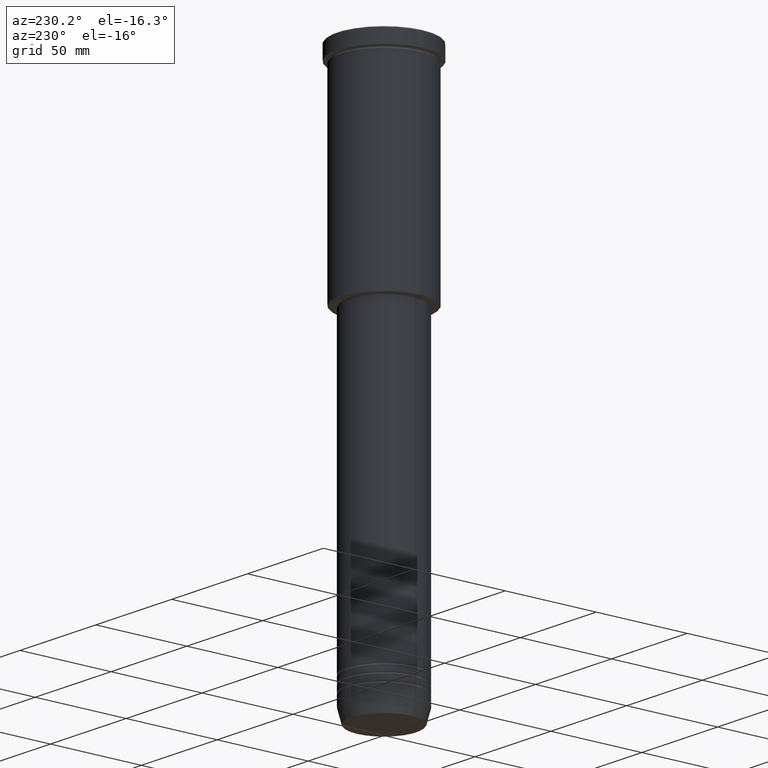
[diagram: clean part render]
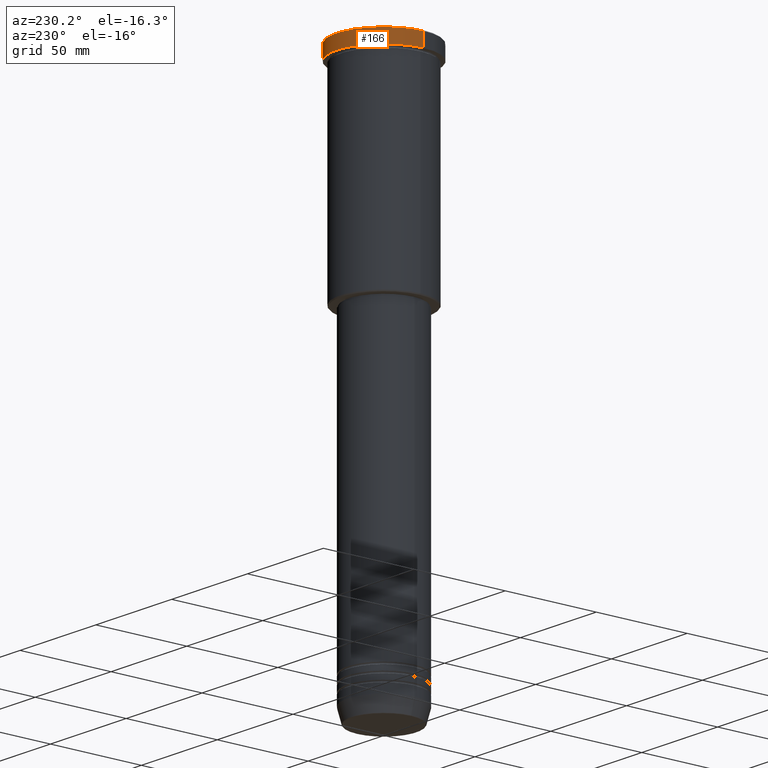
[diagram: same view with one face highlighted and labeled with its STEP entity id]
A machine part, auxiliary view. The second image highlights one B-rep face of the part: STEP entity #166.
In plain terms, the highlighted cylindrical surface (partial cylindrical patch) has radius 26 mm, axis along (-0, -0, 1).
Its self-contained STEP definition (entity closure, byte-faithful):
#4 = CARTESIAN_POINT ( 'NONE',  ( 0.000000000000000000, 0.000000000000000000, 0.000000000000000000 ) ) ;
#6 = VERTEX_POINT ( 'NONE', #905 ) ;
#83 = ORIENTED_EDGE ( 'NONE', *, *, #755, .T. ) ;
#124 = AXIS2_PLACEMENT_3D ( 'NONE', #946, #316, #211 ) ;
#166 = ADVANCED_FACE ( 'NONE', ( #459 ), #467, .T. ) ;
#192 = DIRECTION ( 'NONE',  ( -0.000000000000000000, -0.000000000000000000, 1.000000000000000000 ) ) ;
#211 = DIRECTION ( 'NONE',  ( 1.000000000000000000, 0.000000000000000000, 0.000000000000000000 ) ) ;
#213 = VERTEX_POINT ( 'NONE', #806 ) ;
#230 = ORIENTED_EDGE ( 'NONE', *, *, #1122, .T. ) ;
#236 = VECTOR ( 'NONE', #192, 1000.000000000000000 ) ;
#271 = CARTESIAN_POINT ( 'NONE',  ( 26.00000000000000000, 0.000000000000000000, 0.000000000000000000 ) ) ;
#316 = DIRECTION ( 'NONE',  ( 0.000000000000000000, 0.000000000000000000, -1.000000000000000000 ) ) ;
#375 = DIRECTION ( 'NONE',  ( -0.000000000000000000, -0.000000000000000000, 1.000000000000000000 ) ) ;
#459 = FACE_OUTER_BOUND ( 'NONE', #605, .T. ) ;
#467 = CYLINDRICAL_SURFACE ( 'NONE', #825, 26.00000000000000000 ) ;
#487 = ORIENTED_EDGE ( 'NONE', *, *, #513, .T. ) ;
#513 = EDGE_CURVE ( 'NONE', #575, #6, #980, .T. ) ;
#575 = VERTEX_POINT ( 'NONE', #1082 ) ;
#605 = EDGE_LOOP ( 'NONE', ( #487, #83, #230, #692 ) ) ;
#670 = DIRECTION ( 'NONE',  ( -0.000000000000000000, -0.000000000000000000, 1.000000000000000000 ) ) ;
#692 = ORIENTED_EDGE ( 'NONE', *, *, #870, .F. ) ;
#743 = DIRECTION ( 'NONE',  ( 1.000000000000000000, 0.000000000000000000, 0.000000000000000000 ) ) ;
#755 = EDGE_CURVE ( 'NONE', #6, #213, #1130, .T. ) ;
#806 = CARTESIAN_POINT ( 'NONE',  ( -26.00000000000000000, 3.184081677783118191E-15, -0.4999999999999692468 ) ) ;
#825 = AXIS2_PLACEMENT_3D ( 'NONE', #4, #375, #743 ) ;
#842 = LINE ( 'NONE', #271, #236 ) ;
#870 = EDGE_CURVE ( 'NONE', #575, #1134, #842, .T. ) ;
#875 = VECTOR ( 'NONE', #960, 1000.000000000000000 ) ;
#905 = CARTESIAN_POINT ( 'NONE',  ( -26.00000000000000000, 3.184081677783118191E-15, -7.999999999999992895 ) ) ;
#924 = CARTESIAN_POINT ( 'NONE',  ( 0.000000000000000000, 0.000000000000000000, -7.999999999999992895 ) ) ;
#927 = CARTESIAN_POINT ( 'NONE',  ( -26.00000000000000000, 3.184081677783118191E-15, 0.000000000000000000 ) ) ;
#946 = CARTESIAN_POINT ( 'NONE',  ( 0.000000000000000000, 0.000000000000000000, -0.4999999999999692468 ) ) ;
#960 = DIRECTION ( 'NONE',  ( -0.000000000000000000, -0.000000000000000000, 1.000000000000000000 ) ) ;
#980 = CIRCLE ( 'NONE', #1109, 26.00000000000000000 ) ;
#1031 = CARTESIAN_POINT ( 'NONE',  ( 26.00000000000000000, 0.000000000000000000, -0.4999999999999692468 ) ) ;
#1082 = CARTESIAN_POINT ( 'NONE',  ( 26.00000000000000000, 0.000000000000000000, -7.999999999999992895 ) ) ;
#1109 = AXIS2_PLACEMENT_3D ( 'NONE', #924, #670, #1181 ) ;
#1122 = EDGE_CURVE ( 'NONE', #213, #1134, #1161, .T. ) ;
#1130 = LINE ( 'NONE', #927, #875 ) ;
#1134 = VERTEX_POINT ( 'NONE', #1031 ) ;
#1161 = CIRCLE ( 'NONE', #124, 26.00000000000000000 ) ;
#1181 = DIRECTION ( 'NONE',  ( 1.000000000000000000, 0.000000000000000000, 0.000000000000000000 ) ) ;